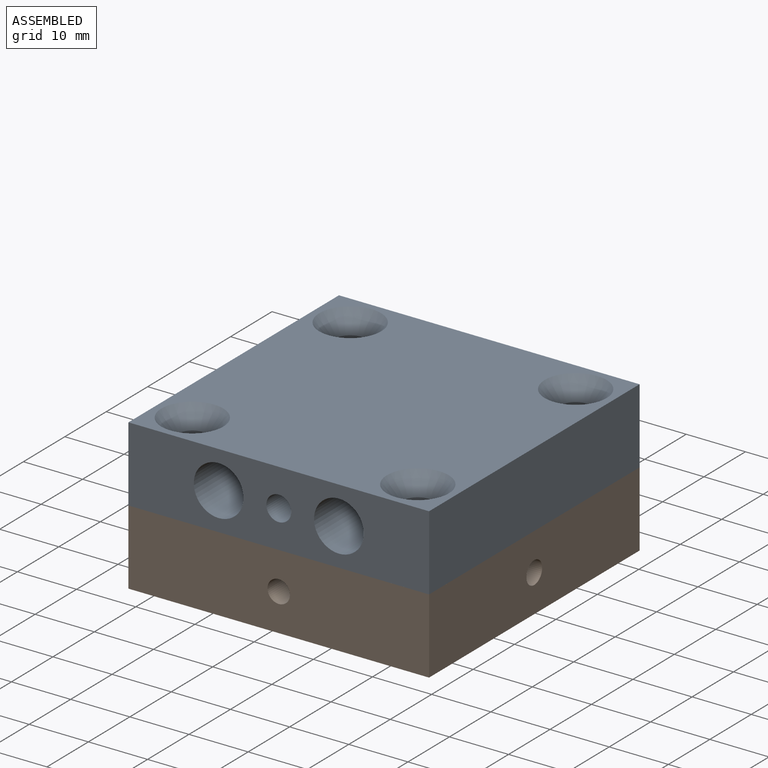
[diagram: assembled view]
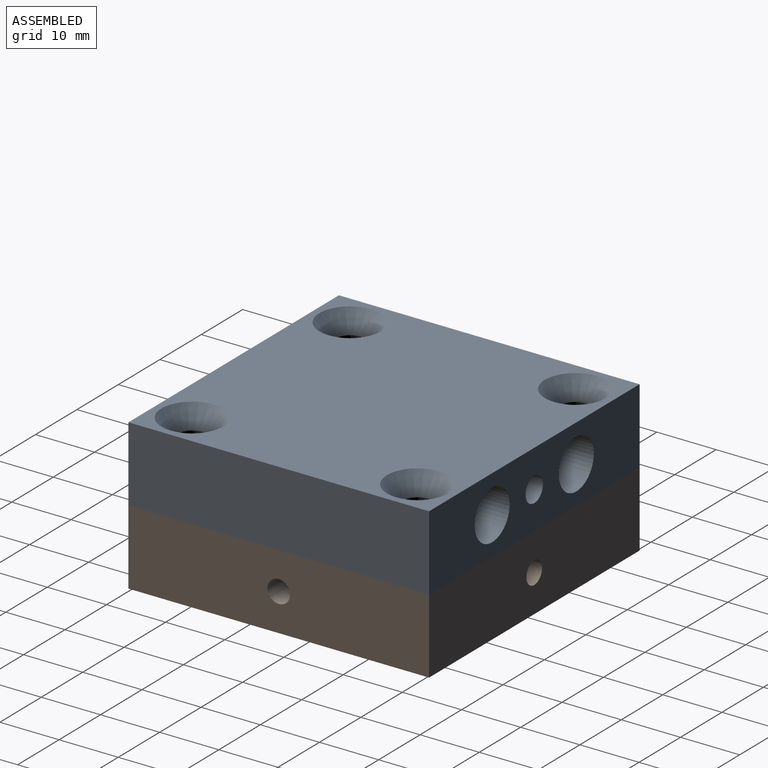
[diagram: assembled view, second angle]
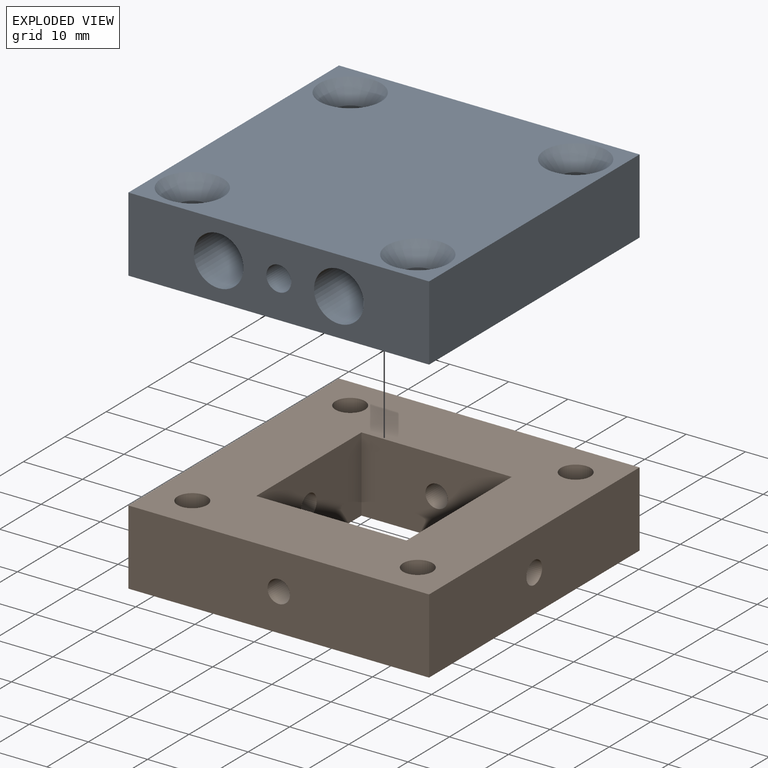
[diagram: exploded view]
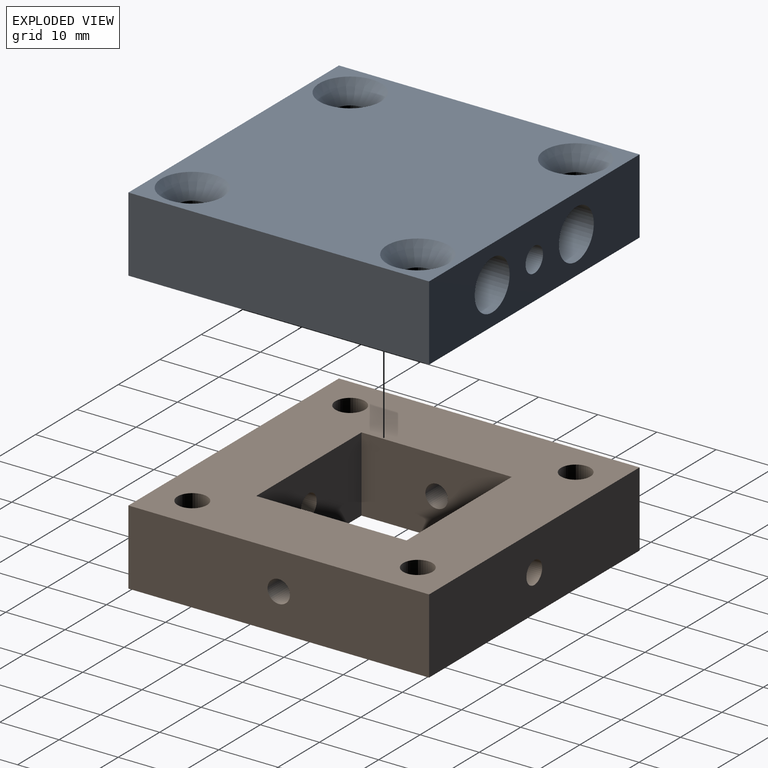
[diagram: exploded view, second angle]
ASSEMBLY  parts=2 mates=2
PART A: 17 faces, bbox 50.8x50.8x12.7 mm
  f0: plane 50.8x12.7mm, normal (0,-1,0), area 520.5mm2, adj f1,f3,f4,f5,f6,f7,f16
  f1: plane 50.8x12.7mm, normal (1,0,0), area 645.2mm2, adj f0,f2,f4,f5
  f2: plane 50.8x12.7mm, normal (0,1,0), area 520.5mm2, adj f1,f3,f4,f5,f6,f7,f16
  f3: plane 50.8x12.7mm, normal (-1,0,0), area 645.2mm2, adj f0,f2,f4,f5
  f4: plane 50.8x50.8mm, normal (0,0,-1), area 2502.8mm2, adj f0,f1,f2,f3,f8,f10,f12,f14
  f5: plane 50.8x50.8mm, normal (0,0,1), area 2238.3mm2, adj f0,f1,f2,f3,f9,f11,f13,f15
  f6: cylinder r=4.2mm len=50.8mm, axis (0,-1,0), area 1340.6mm2, adj f0,f2
  f7: cylinder r=4.2mm len=50.8mm, axis (0,-1,0), area 1340.6mm2, adj f0,f2
  f8: cylinder r=2.49mm len=9.56mm, axis (0,0,1), area 149.5mm2, adj f4,f9
  f9: cone r=2.49mm half-angle=41deg, axis (0,0,1), area 100.8mm2, adj f5,f8
  f10: cylinder r=2.49mm len=9.56mm, axis (0,0,1), area 149.5mm2, adj f4,f11
  f11: cone r=2.49mm half-angle=41deg, axis (0,0,1), area 100.8mm2, adj f5,f10
  f12: cylinder r=2.49mm len=9.56mm, axis (0,0,1), area 149.5mm2, adj f4,f13
  f13: cone r=2.49mm half-angle=41deg, axis (0,0,1), area 100.8mm2, adj f5,f12
  f14: cylinder r=2.49mm len=9.56mm, axis (0,0,1), area 149.5mm2, adj f4,f15
  f15: cone r=2.49mm half-angle=41deg, axis (0,0,1), area 100.8mm2, adj f5,f14
  f16: cylinder r=2.1mm len=50.8mm, axis (0,-1,0), area 670.3mm2, adj f0,f2
PART B: 18 faces, bbox 50.8x50.8x12.7 mm
  f0: plane 50.8x50.8mm, normal (0,0,1), area 1857.6mm2, adj f2,f3,f4,f5,f6,f7,f8,f9
  f1: plane 50.8x50.8mm, normal (0,0,-1), area 1857.6mm2, adj f2,f3,f4,f5,f6,f7,f8,f9
  f2: plane 50.8x12.7mm, normal (0,1,0), area 633.8mm2, adj f0,f1,f3,f5,f15
  f3: plane 50.8x12.7mm, normal (-1,0,0), area 633.8mm2, adj f0,f1,f2,f4,f17
  f4: plane 50.8x12.7mm, normal (0,-1,0), area 633.8mm2, adj f0,f1,f3,f5,f14
  f5: plane 50.8x12.7mm, normal (1,0,0), area 633.8mm2, adj f0,f1,f2,f4,f16
  f6: plane 25.4x12.7mm, normal (0,-1,0), area 311.3mm2, adj f0,f1,f7,f9,f15
  f7: plane 25.4x12.7mm, normal (1,0,0), area 311.3mm2, adj f0,f1,f6,f8,f17
  f8: plane 25.4x12.7mm, normal (0,1,0), area 311.3mm2, adj f0,f1,f7,f9,f14
  f9: plane 25.4x12.7mm, normal (-1,0,0), area 311.3mm2, adj f0,f1,f6,f8,f16
  f10: cylinder r=2.49mm len=12.7mm, axis (0,0,1), area 198.6mm2, adj f0,f1
  f11: cylinder r=2.49mm len=12.7mm, axis (0,0,1), area 198.6mm2, adj f0,f1
  f12: cylinder r=2.49mm len=12.7mm, axis (0,0,1), area 198.6mm2, adj f0,f1
  f13: cylinder r=2.49mm len=12.7mm, axis (0,0,1), area 198.6mm2, adj f0,f1
  f14: cylinder r=1.9mm len=12.7mm, axis (0,-1,0), area 151.5mm2, adj f4,f8
  f15: cylinder r=1.9mm len=12.7mm, axis (0,-1,0), area 151.5mm2, adj f2,f6
  f16: cylinder r=1.9mm len=12.7mm, axis (-1,0,0), area 151.5mm2, adj f5,f9
  f17: cylinder r=1.9mm len=12.7mm, axis (-1,0,0), area 151.5mm2, adj f3,f7
PLACE A t=(-8.14,5.58,12.7)mm
PLACE B t=(-8.14,5.58,0)mm
MATE cylindrical A.f12 <-> B.f13  axis (0,0,-1) through (36.31,11.93,6.35)mm
MATE cylindrical A.f14 <-> B.f10  axis (0,0,-1) through (36.31,50.03,6.35)mm
